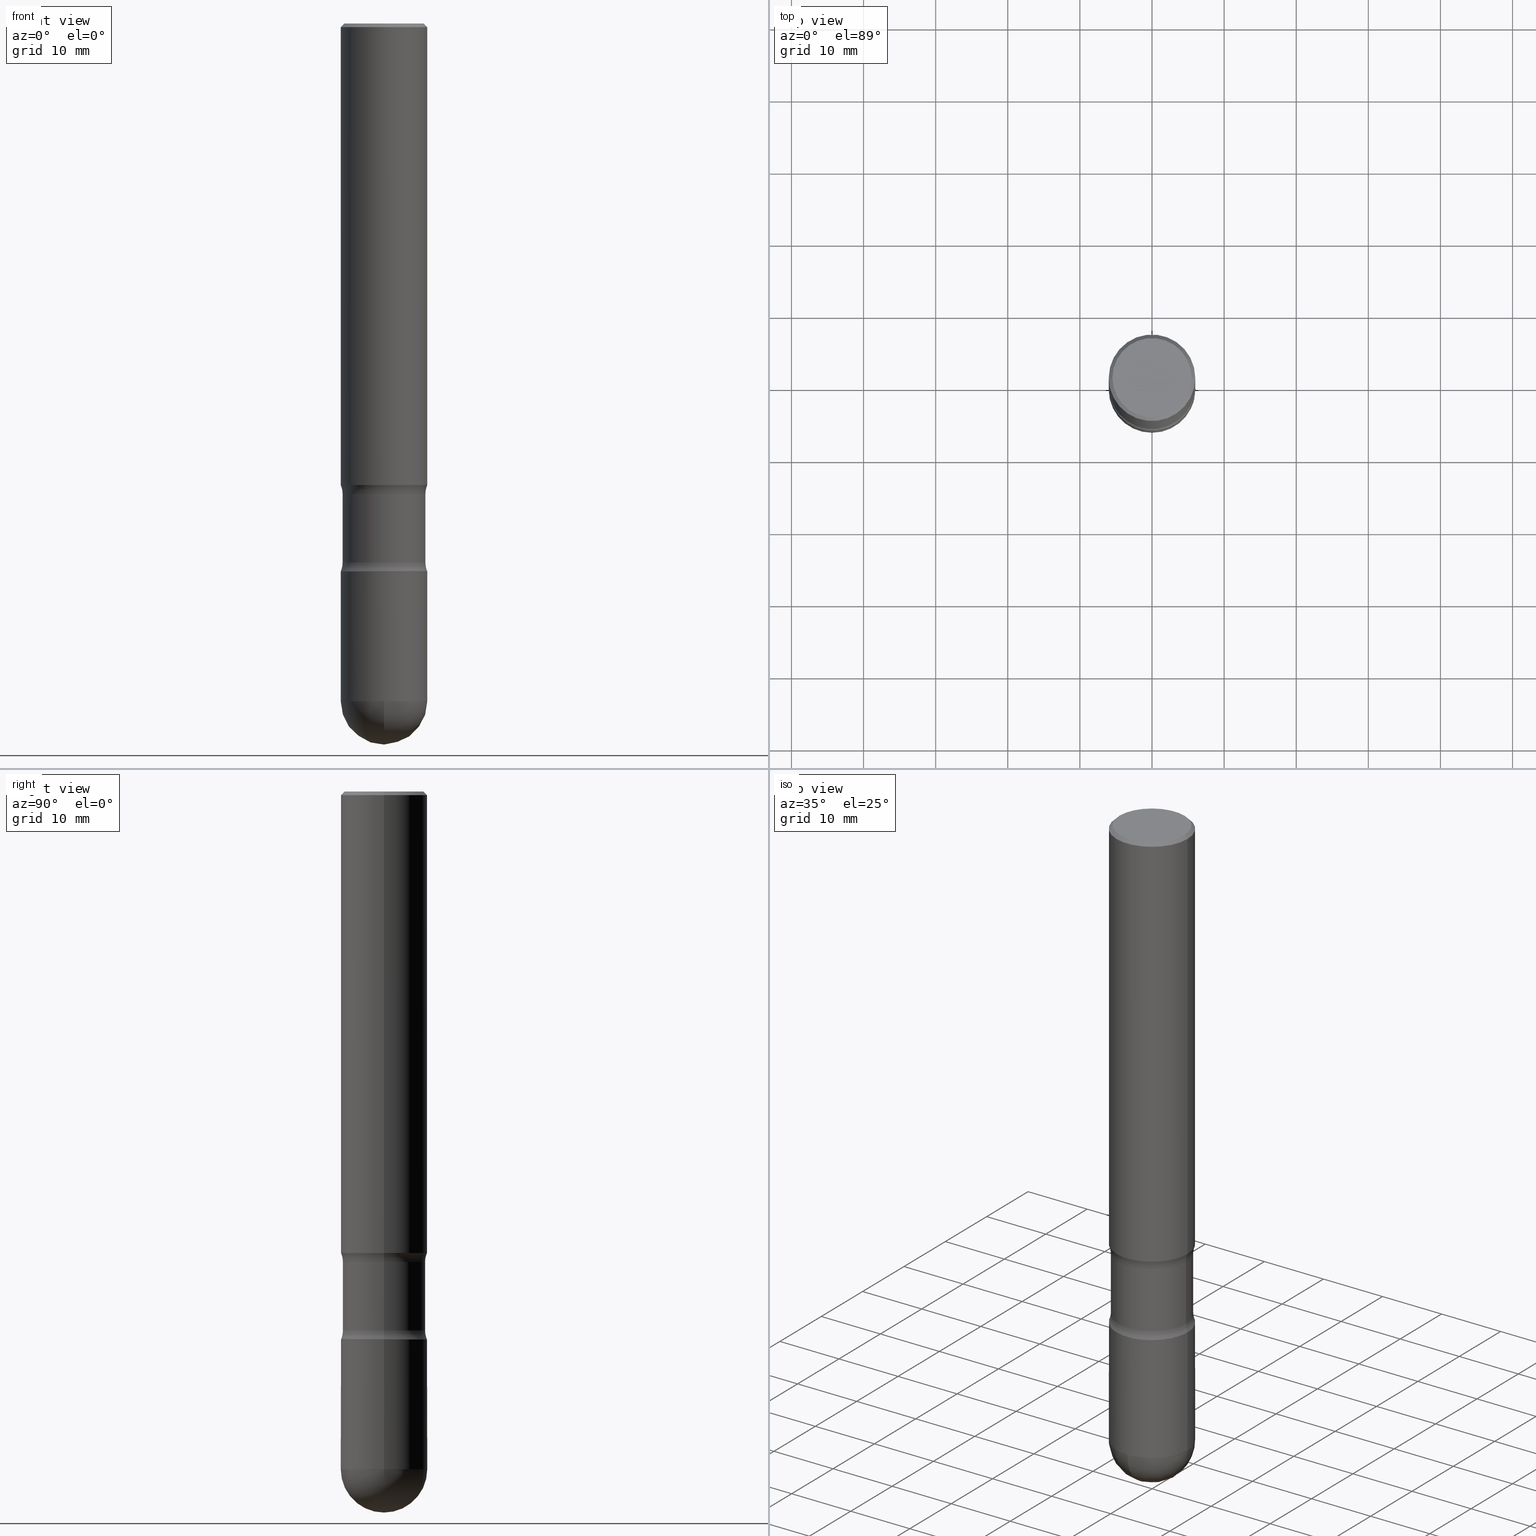
[diagram: canonical four-view strip — front | top / right | iso, engineering-drawing reading convention]
A machine part, canonical four-view strip (front | top / right | iso — engineering-drawing reading convention). The complete STEP part file that produces these views, byte-faithful:
ISO-10303-21;
HEADER;
FILE_DESCRIPTION (( 'STEP AP203' ),
    '1' );
FILE_NAME ('44935.STEP',
    '2024-02-29T19:26:20',
    ( '' ),
    ( '' ),
    'SwSTEP 2.0',
    'SolidWorks 2023',
    '' );
FILE_SCHEMA (( 'CONFIG_CONTROL_DESIGN' ));
ENDSEC;

DATA;
#1 = ORIENTED_EDGE ( 'NONE', *, *, #159, .T. ) ;
#2 = VERTEX_POINT ( 'NONE', #149 ) ;
#3 = DIRECTION ( 'NONE',  ( -1.000000000000000000, 6.982962677686266711E-15, 0.000000000000000000 ) ) ;
#4 = ORIENTED_EDGE ( 'NONE', *, *, #413, .F. ) ;
#5 = VECTOR ( 'NONE', #270, 39.37007874015748143 ) ;
#6 = DIRECTION ( 'NONE',  ( 2.445468806185136597E-29, -3.491481338843145583E-15, -1.000000000000000000 ) ) ;
#7 = CC_DESIGN_APPROVAL ( #213, ( #223 ) ) ;
#8 = CARTESIAN_POINT ( 'NONE',  ( 4.890937612370354609E-31, -6.982962677686407473E-17, -0.02000000000000033348 ) ) ;
#9 = ORIENTED_EDGE ( 'NONE', *, *, #503, .F. ) ;
#10 = EDGE_CURVE ( 'NONE', #262, #236, #176, .T. ) ;
#11 = ORIENTED_EDGE ( 'NONE', *, *, #33, .T. ) ;
#12 = DIRECTION ( 'NONE',  ( 2.445468806185136597E-29, -3.491481338843145583E-15, -1.000000000000000000 ) ) ;
#13 = VERTEX_POINT ( 'NONE', #278 ) ;
#14 = ORIENTED_EDGE ( 'NONE', *, *, #24, .T. ) ;
#15 = CARTESIAN_POINT ( 'NONE',  ( 0.000000000000000000, 0.000000000000000000, 0.000000000000000000 ) ) ;
#16 = COORDINATED_UNIVERSAL_TIME_OFFSET ( 5, 0, .BEHIND. ) ;
#17 = EDGE_LOOP ( 'NONE', ( #530, #527, #43, #444 ) ) ;
#18 = AXIS2_PLACEMENT_3D ( 'NONE', #548, #502, #206 ) ;
#19 = AXIS2_PLACEMENT_3D ( 'NONE', #108, #377, #248 ) ;
#20 = EDGE_CURVE ( 'NONE', #107, #197, #332, .T. ) ;
#21 = ORIENTED_EDGE ( 'NONE', *, *, #496, .F. ) ;
#22 = DIRECTION ( 'NONE',  ( 2.438088387897960049E-29, -3.491481338843145188E-15, -1.000000000000000000 ) ) ;
#23 = LINE ( 'NONE', #349, #66 ) ;
#24 = EDGE_CURVE ( 'NONE', #64, #13, #65, .T. ) ;
#25 = CARTESIAN_POINT ( 'NONE',  ( -0.2259999999999994513, -7.392012926791492320E-15, -2.569156647682591998 ) ) ;
#26 = COORDINATED_UNIVERSAL_TIME_OFFSET ( 5, 0, .BEHIND. ) ;
#27 = EDGE_LOOP ( 'NONE', ( #491, #493 ) ) ;
#28 = EDGE_CURVE ( 'NONE', #417, #359, #392, .T. ) ;
#29 = DIRECTION ( 'NONE',  ( -2.445468806185136597E-29, 3.491481338843145583E-15, 1.000000000000000000 ) ) ;
#30 = PLANE ( 'NONE',  #46 ) ;
#31 = DIRECTION ( 'NONE',  ( 6.860497997771531562E-15, 1.000000000000000000, -3.491481338843145583E-15 ) ) ;
#32 = CARTESIAN_POINT ( 'NONE',  ( 1.509716530915768548E-15, 0.2161999999999996980, -7.527240092128368218E-16 ) ) ;
#33 = EDGE_CURVE ( 'NONE', #453, #368, #186, .T. ) ;
#34 = CIRCLE ( 'NONE', #504, 0.2362000000000000210 ) ;
#35 = DIRECTION ( 'NONE',  ( -2.438088387897960049E-29, 3.491481338843145188E-15, 1.000000000000000000 ) ) ;
#36 = CIRCLE ( 'NONE', #73, 0.2361999999999997712 ) ;
#37 = CONICAL_SURFACE ( 'NONE', #289, 0.2356999999999994377, 0.7853981633973995402 ) ;
#38 =( NAMED_UNIT ( * ) PLANE_ANGLE_UNIT ( ) SI_UNIT ( $, .RADIAN. ) );
#39 = CARTESIAN_POINT ( 'NONE',  ( -0.2362000000000000210, -7.148109745013582758E-15, -2.519700000000001605 ) ) ;
#40 = EDGE_CURVE ( 'NONE', #440, #240, #371, .T. ) ;
#41 = DIRECTION ( 'NONE',  ( 1.000000000000000000, 0.000000000000000000, 0.000000000000000000 ) ) ;
#42 = PERSON ( 'UNSPECIFIED', 'UNSPECIFIED', 'UNSPECIFIED', ('UNSPECIFIED'), ('UNSPECIFIED'), ('UNSPECIFIED') ) ;
#43 = ORIENTED_EDGE ( 'NONE', *, *, #103, .F. ) ;
#44 = AXIS2_PLACEMENT_3D ( 'NONE', #15, #423, #68 ) ;
#45 = ADVANCED_FACE ( 'NONE', ( #380 ), #506, .T. ) ;
#46 = AXIS2_PLACEMENT_3D ( 'NONE', #220, #519, #454 ) ;
#47 = LOCAL_TIME ( 14, 26, 20.00000000000000000, #26 ) ;
#48 = CARTESIAN_POINT ( 'NONE',  ( 7.196142525820281571E-29, -1.027418435148706833E-14, -2.942643352317408478 ) ) ;
#49 = EDGE_LOOP ( 'NONE', ( #370, #244, #419, #14 ) ) ;
#50 = DIRECTION ( 'NONE',  ( -1.000000000000000000, 6.860497997771534718E-15, 0.000000000000000000 ) ) ;
#51 = ADVANCED_FACE ( 'NONE', ( #77 ), #347, .F. ) ;
#52 = ORIENTED_EDGE ( 'NONE', *, *, #472, .F. ) ;
#53 = ADVANCED_FACE ( 'NONE', ( #219 ), #354, .T. ) ;
#54 = DIRECTION ( 'NONE',  ( -2.445468806185136597E-29, 3.491481338843145583E-15, 1.000000000000000000 ) ) ;
#55 = DIRECTION ( 'NONE',  ( 1.000000000000000000, -6.982962677686264344E-15, 0.000000000000000000 ) ) ;
#56 = EDGE_LOOP ( 'NONE', ( #309, #228, #187, #302 ) ) ;
#57 = VECTOR ( 'NONE', #142, 39.37007874015748143 ) ;
#58 = APPROVAL_PERSON_ORGANIZATION ( #524, #118, #280 ) ;
#59 = CARTESIAN_POINT ( 'NONE',  ( 1.649375784469583694E-15, 0.2361999999999866706, -3.700800000000000978 ) ) ;
#60 = ORIENTED_EDGE ( 'NONE', *, *, #143, .F. ) ;
#61 = CARTESIAN_POINT ( 'NONE',  ( 0.2356999999999994377, -1.209274561708322459E-14, -2.992100000000000204 ) ) ;
#62 = ORIENTED_EDGE ( 'NONE', *, *, #103, .T. ) ;
#63 = EDGE_LOOP ( 'NONE', ( #1, #400 ) ) ;
#64 = VERTEX_POINT ( 'NONE', #393 ) ;
#65 = CIRCLE ( 'NONE', #18, 0.2259999999999994791 ) ;
#66 = VECTOR ( 'NONE', #295, 39.37007874015748143 ) ;
#67 = LOCAL_TIME ( 14, 26, 20.00000000000000000, #82 ) ;
#68 = DIRECTION ( 'NONE',  ( -1.000000000000000000, 6.982962677686266711E-15, -4.876176775795936353E-29 ) ) ;
#69 = PRODUCT ( '44935', '44935', '', ( #404 ) ) ;
#70 = CARTESIAN_POINT ( 'NONE',  ( 0.3509999999999877107, -1.137819728916630722E-14, -2.569156647682591998 ) ) ;
#71 = EDGE_CURVE ( 'NONE', #236, #107, #306, .T. ) ;
#72 = DIRECTION ( 'NONE',  ( -2.445468806185136597E-29, 3.491481338843145583E-15, 1.000000000000000000 ) ) ;
#73 = AXIS2_PLACEMENT_3D ( 'NONE', #8, #402, #439 ) ;
#74 = DIRECTION ( 'NONE',  ( -1.000000000000000000, 6.982962677686264344E-15, 0.000000000000000000 ) ) ;
#75 = AXIS2_PLACEMENT_3D ( 'NONE', #471, #420, #552 ) ;
#76 = CALENDAR_DATE ( 2024, 29, 2 ) ;
#77 = FACE_OUTER_BOUND ( 'NONE', #95, .T. ) ;
#78 = ADVANCED_FACE ( 'NONE', ( #391 ), #164, .T. ) ;
#79 = DIRECTION ( 'NONE',  ( -1.000000000000000000, 6.982962677686265922E-15, -4.883557194083112340E-29 ) ) ;
#80 = CLOSED_SHELL ( 'NONE', ( #138, #341, #461, #446, #394 ) ) ;
#81 = VECTOR ( 'NONE', #227, 39.37007874015748143 ) ;
#82 = COORDINATED_UNIVERSAL_TIME_OFFSET ( 5, 0, .BEHIND. ) ;
#83 = DIRECTION ( 'NONE',  ( 0.7071067811865426878, -7.319954787623238690E-15, -0.7071067811865523467 ) ) ;
#84 = CARTESIAN_POINT ( 'NONE',  ( 6.282792440110956015E-29, -8.970162491948585188E-15, -2.569156647682591998 ) ) ;
#85 = CARTESIAN_POINT ( 'NONE',  ( -0.2361999999999993827, 1.678301941865352253E-15, -1.161852468318205674E-29 ) ) ;
#86 = DIRECTION ( 'NONE',  ( 2.445468806185136597E-29, -3.491481338843145583E-15, -1.000000000000000000 ) ) ;
#87 = CC_DESIGN_PERSON_AND_ORGANIZATION_ASSIGNMENT ( #451, #526, ( #69 ) ) ;
#88 = EDGE_LOOP ( 'NONE', ( #538, #98 ) ) ;
#89 = FACE_OUTER_BOUND ( 'NONE', #458, .T. ) ;
#90 = ORIENTED_EDGE ( 'NONE', *, *, #33, .F. ) ;
#91 = CONICAL_SURFACE ( 'NONE', #264, 0.2361999999999997712, 0.7853981633974415066 ) ;
#92 = ORGANIZATION ( 'UNSPECIFIED', 'UNSPECIFIED', '' ) ;
#93 = ORIENTED_EDGE ( 'NONE', *, *, #272, .T. ) ;
#94 = DIRECTION ( 'NONE',  ( 6.860497997771531562E-15, 1.000000000000000000, -3.491481338843145583E-15 ) ) ;
#95 = EDGE_LOOP ( 'NONE', ( #90, #328, #494, #268 ) ) ;
#96 = CARTESIAN_POINT ( 'NONE',  ( 0.2361999999999994382, -1.209623709842206760E-14, -2.992100000000000204 ) ) ;
#97 = CC_DESIGN_DATE_AND_TIME_ASSIGNMENT ( #252, #381, ( #223 ) ) ;
#98 = ORIENTED_EDGE ( 'NONE', *, *, #437, .T. ) ;
#99 = DIRECTION ( 'NONE',  ( -1.000000000000000000, 6.982962677686266711E-15, -4.876176775795936353E-29 ) ) ;
#100 = ORIENTED_EDGE ( 'NONE', *, *, #553, .T. ) ;
#101 = EDGE_LOOP ( 'NONE', ( #137, #233, #369, #482 ) ) ;
#102 = ORIENTED_EDGE ( 'NONE', *, *, #553, .F. ) ;
#103 = EDGE_CURVE ( 'NONE', #222, #146, #34, .T. ) ;
#104 = AXIS2_PLACEMENT_3D ( 'NONE', #154, #247, #116 ) ;
#105 = ORIENTED_EDGE ( 'NONE', *, *, #40, .F. ) ;
#106 = CC_DESIGN_SECURITY_CLASSIFICATION ( #223, ( #356 ) ) ;
#107 = VERTEX_POINT ( 'NONE', #514 ) ;
#108 = CARTESIAN_POINT ( 'NONE',  ( 9.029991930179535488E-29, -1.295020029618657502E-14, -3.700800000000000090 ) ) ;
#109 = CARTESIAN_POINT ( 'NONE',  ( 7.317087214986547114E-29, -1.044686131395257581E-14, -2.992100000000000204 ) ) ;
#110 = DIRECTION ( 'NONE',  ( -2.445468806185136597E-29, 3.491481338843145583E-15, 1.000000000000000000 ) ) ;
#111 = DIRECTION ( 'NONE',  ( 2.445468806185136597E-29, -3.491481338843145583E-15, -1.000000000000000000 ) ) ;
#112 = DIRECTION ( 'NONE',  ( 2.445468806185136597E-29, -3.491481338843145583E-15, -1.000000000000000000 ) ) ;
#113 = AXIS2_PLACEMENT_3D ( 'NONE', #317, #185, #182 ) ;
#114 = APPROVAL_PERSON_ORGANIZATION ( #518, #256, #298 ) ;
#115 = DIRECTION ( 'NONE',  ( -2.445468806185136877E-29, 3.491481338843145188E-15, 1.000000000000000000 ) ) ;
#116 = DIRECTION ( 'NONE',  ( -1.000000000000000000, 6.982962677686268288E-15, 0.000000000000000000 ) ) ;
#117 = CYLINDRICAL_SURFACE ( 'NONE', #104, 0.2361999999999998823 ) ;
#118 = APPROVAL ( #465, 'UNSPECIFIED' ) ;
#119 = CARTESIAN_POINT ( 'NONE',  ( 0.2161999999999996980, -1.586759460484350410E-15, 1.082724460448618591E-29 ) ) ;
#120 = PERSON_AND_ORGANIZATION ( #42, #92 ) ;
#121 = ADVANCED_FACE ( 'NONE', ( #300 ), #407, .F. ) ;
#122 = DATE_AND_TIME ( #76, #47 ) ;
#123 = AXIS2_PLACEMENT_3D ( 'NONE', #551, #111, #283 ) ;
#124 = AXIS2_PLACEMENT_3D ( 'NONE', #541, #537, #55 ) ;
#125 = CARTESIAN_POINT ( 'NONE',  ( 9.050190957929953666E-29, -1.292127413879071357E-14, -3.700800000000000090 ) ) ;
#126 = DIRECTION ( 'NONE',  ( 2.445468806185136597E-29, -3.491481338843145583E-15, -1.000000000000000000 ) ) ;
#127 = CARTESIAN_POINT ( 'NONE',  ( 7.317087214986547114E-29, -1.044686131395257581E-14, -2.992100000000000204 ) ) ;
#128 = LOCAL_TIME ( 14, 26, 20.00000000000000000, #431 ) ;
#129 = EDGE_CURVE ( 'NONE', #195, #144, #505, .T. ) ;
#130 = EDGE_CURVE ( 'NONE', #2, #135, #36, .T. ) ;
#131 = DIRECTION ( 'NONE',  ( -1.000000000000000000, 6.982962677686266711E-15, -4.883557194083112901E-29 ) ) ;
#132 = ORIENTED_EDGE ( 'NONE', *, *, #10, .F. ) ;
#133 = MANIFOLD_SOLID_BREP ( 'Body-Move/Copy2[2]', #336 ) ;
#134 = CARTESIAN_POINT ( 'NONE',  ( -0.2361999999999992716, -1.000576578450629382E-14, -3.700800000000000090 ) ) ;
#135 = VERTEX_POINT ( 'NONE', #399 ) ;
#136 = CARTESIAN_POINT ( 'NONE',  ( 7.196142525820281571E-29, -1.027418435148706833E-14, -2.942643352317408478 ) ) ;
#137 = ORIENTED_EDGE ( 'NONE', *, *, #511, .F. ) ;
#138 = ADVANCED_FACE ( 'NONE', ( #89 ), #529, .T. ) ;
#139 = AXIS2_PLACEMENT_3D ( 'NONE', #334, #199, #501 ) ;
#140 = EDGE_CURVE ( 'NONE', #135, #2, #161, .T. ) ;
#141 = AXIS2_PLACEMENT_3D ( 'NONE', #331, #464, #294 ) ;
#142 = DIRECTION ( 'NONE',  ( 2.445468806185136877E-29, -3.491481338843145188E-15, -1.000000000000000000 ) ) ;
#143 = EDGE_CURVE ( 'NONE', #240, #64, #550, .T. ) ;
#144 = VERTEX_POINT ( 'NONE', #134 ) ;
#145 = DIRECTION ( 'NONE',  ( 1.000000000000000000, -6.982962677686266711E-15, 0.000000000000000000 ) ) ;
#146 = VERTEX_POINT ( 'NONE', #360 ) ;
#147 = ORIENTED_EDGE ( 'NONE', *, *, #151, .T. ) ;
#148 = CARTESIAN_POINT ( 'NONE',  ( 0.2360498943860057097, -1.206505949204264227E-14, -2.991750105613993682 ) ) ;
#149 = CARTESIAN_POINT ( 'NONE',  ( -0.2361999999999997712, 1.579546157692630466E-15, -0.02000000000000033348 ) ) ;
#150 = AXIS2_PLACEMENT_3D ( 'NONE', #136, #305, #484 ) ;
#151 = EDGE_CURVE ( 'NONE', #368, #222, #259, .T. ) ;
#152 = ADVANCED_FACE ( 'NONE', ( #363 ), #497, .F. ) ;
#153 = APPROVAL_STATUS ( 'not_yet_approved' ) ;
#154 = CARTESIAN_POINT ( 'NONE',  ( 7.317087214986547114E-29, -1.044686131395257581E-14, -2.992100000000000204 ) ) ;
#155 = CARTESIAN_POINT ( 'NONE',  ( 7.317087214986547114E-29, -1.044686131395257581E-14, -2.992100000000000204 ) ) ;
#156 = CARTESIAN_POINT ( 'NONE',  ( 9.029991930179535488E-29, -1.295020029618657502E-14, -3.700800000000000090 ) ) ;
#157 = CARTESIAN_POINT ( 'NONE',  ( 6.161847750944692713E-29, -8.797485529483079283E-15, -2.519700000000001605 ) ) ;
#158 = DATE_TIME_ROLE ( 'creation_date' ) ;
#159 = EDGE_CURVE ( 'NONE', #409, #486, #201, .T. ) ;
#160 = AXIS2_PLACEMENT_3D ( 'NONE', #84, #86, #131 ) ;
#161 = CIRCLE ( 'NONE', #337, 0.2361999999999997712 ) ;
#162 =( GEOMETRIC_REPRESENTATION_CONTEXT ( 3 ) GLOBAL_UNCERTAINTY_ASSIGNED_CONTEXT ( ( #424 ) ) GLOBAL_UNIT_ASSIGNED_CONTEXT ( ( #282, #38, #468 ) ) REPRESENTATION_CONTEXT ( 'NONE', 'WORKASPACE' ) );
#163 = PERSON_AND_ORGANIZATION ( #42, #92 ) ;
#164 = CYLINDRICAL_SURFACE ( 'NONE', #432, 0.2259999999999994513 ) ;
#165 = EDGE_CURVE ( 'NONE', #359, #417, #455, .T. ) ;
#166 = CARTESIAN_POINT ( 'NONE',  ( 4.890937612370354609E-31, -6.982962677686407473E-17, -0.02000000000000033348 ) ) ;
#167 = DIRECTION ( 'NONE',  ( 2.445468806185136597E-29, -3.491481338843145583E-15, -1.000000000000000000 ) ) ;
#168 = SPHERICAL_SURFACE ( 'NONE', #355, 0.2361999999999999655 ) ;
#169 = AXIS2_PLACEMENT_3D ( 'NONE', #387, #436, #561 ) ;
#170 = ADVANCED_FACE ( 'NONE', ( #452 ), #177, .T. ) ;
#171 = DATE_AND_TIME ( #258, #67 ) ;
#172 = CIRCLE ( 'NONE', #308, 0.2259999999999994513 ) ;
#173 = CARTESIAN_POINT ( 'NONE',  ( 9.050190957929953666E-29, -1.292127413879071357E-14, -3.700800000000000090 ) ) ;
#174 = CARTESIAN_POINT ( 'NONE',  ( 9.050190957929953666E-29, -1.292127413879071357E-14, -3.700800000000000090 ) ) ;
#175 = PRODUCT_DEFINITION ( 'UNKNOWN', '', #356, #243 ) ;
#176 = CIRCLE ( 'NONE', #495, 0.2361999999999999655 ) ;
#177 = CYLINDRICAL_SURFACE ( 'NONE', #515, 0.2361999999999998823 ) ;
#178 = CIRCLE ( 'NONE', #543, 0.1249999999999882871 ) ;
#179 = FACE_OUTER_BOUND ( 'NONE', #492, .T. ) ;
#180 = CONICAL_SURFACE ( 'NONE', #477, 0.2356999999999994377, 0.7853981633973995402 ) ;
#181 = ORIENTED_EDGE ( 'NONE', *, *, #413, .T. ) ;
#182 = DIRECTION ( 'NONE',  ( 1.000000000000000000, -6.982962677686265922E-15, 4.876176775795935793E-29 ) ) ;
#183 = EDGE_LOOP ( 'NONE', ( #277, #100, #412, #324 ) ) ;
#184 = CARTESIAN_POINT ( 'NONE',  ( 0.3510000000000005893, -1.268221914870488028E-14, -2.942643352317408478 ) ) ;
#185 = DIRECTION ( 'NONE',  ( -2.445468806185136597E-29, 3.491481338843145583E-15, 1.000000000000000000 ) ) ;
#186 = CIRCLE ( 'NONE', #139, 0.2259999999999994513 ) ;
#187 = ORIENTED_EDGE ( 'NONE', *, *, #395, .T. ) ;
#188 = CIRCLE ( 'NONE', #141, 0.2361999999999999655 ) ;
#189 = ORIENTED_EDGE ( 'NONE', *, *, #449, .F. ) ;
#190 =( LENGTH_UNIT ( ) NAMED_UNIT ( * ) SI_UNIT ( $, .METRE. ) );
#191 = CARTESIAN_POINT ( 'NONE',  ( -0.3510000000000005893, -7.823164451619184229E-15, -2.942643352317408478 ) ) ;
#192 = EDGE_LOOP ( 'NONE', ( #428, #544, #226, #540 ) ) ;
#193 = ORIENTED_EDGE ( 'NONE', *, *, #129, .T. ) ;
#194 = DIRECTION ( 'NONE',  ( -1.000000000000000000, 6.982962677686268288E-15, 0.000000000000000000 ) ) ;
#195 = VERTEX_POINT ( 'NONE', #59 ) ;
#196 = EDGE_CURVE ( 'NONE', #409, #440, #303, .T. ) ;
#197 = VERTEX_POINT ( 'NONE', #96 ) ;
#198 = DIRECTION ( 'NONE',  ( -0.7071067811865130448, 7.493145998870229520E-15, 0.7071067811865819897 ) ) ;
#199 = DIRECTION ( 'NONE',  ( 2.445468806185136597E-29, -3.491481338843145583E-15, -1.000000000000000000 ) ) ;
#200 = FACE_OUTER_BOUND ( 'NONE', #447, .T. ) ;
#201 = CIRCLE ( 'NONE', #558, 0.2356999999999994377 ) ;
#202 = AXIS2_PLACEMENT_3D ( 'NONE', #312, #6, #3 ) ;
#203 = CALENDAR_DATE ( 2024, 29, 2 ) ;
#204 = APPLICATION_CONTEXT ( 'configuration controlled 3d designs of mechanical parts and assemblies' ) ;
#205 = EDGE_CURVE ( 'NONE', #2, #222, #448, .T. ) ;
#206 = DIRECTION ( 'NONE',  ( -1.000000000000000000, 6.982962677686267499E-15, 0.000000000000000000 ) ) ;
#207 = LENGTH_MEASURE_WITH_UNIT ( LENGTH_MEASURE( 0.02539999999999999897 ), #190 );
#208 = DIRECTION ( 'NONE',  ( -1.000000000000000000, 6.982962677686265922E-15, -4.876176775795935793E-29 ) ) ;
#209 = AXIS2_PLACEMENT_3D ( 'NONE', #267, #489, #99 ) ;
#210 = DIRECTION ( 'NONE',  ( 2.445468806185136597E-29, -3.491481338843145583E-15, -1.000000000000000000 ) ) ;
#211 = ORIENTED_EDGE ( 'NONE', *, *, #271, .F. ) ;
#212 = FACE_OUTER_BOUND ( 'NONE', #88, .T. ) ;
#213 = APPROVAL ( #547, 'UNSPECIFIED' ) ;
#214 = LINE ( 'NONE', #352, #322 ) ;
#215 = DIRECTION ( 'NONE',  ( 2.445468806185136597E-29, -3.491481338843145583E-15, -1.000000000000000000 ) ) ;
#216 = AXIS2_PLACEMENT_3D ( 'NONE', #307, #357, #443 ) ;
#217 = DIRECTION ( 'NONE',  ( 1.000000000000000000, -6.982962677686265922E-15, 4.876176775795935793E-29 ) ) ;
#218 = VECTOR ( 'NONE', #488, 39.37007874015748143 ) ;
#219 = FACE_OUTER_BOUND ( 'NONE', #27, .T. ) ;
#220 = CARTESIAN_POINT ( 'NONE',  ( 7.317087214986547114E-29, -1.044686131395257581E-14, -2.992100000000000204 ) ) ;
#221 = AXIS2_PLACEMENT_3D ( 'NONE', #109, #323, #279 ) ;
#222 = VERTEX_POINT ( 'NONE', #39 ) ;
#223 = SECURITY_CLASSIFICATION ( '', '', #512 ) ;
#224 = ADVANCED_BREP_SHAPE_REPRESENTATION ( '44935', ( #325, #133, #398 ), #162 ) ;
#225 = DIRECTION ( 'NONE',  ( -1.000000000000000000, 6.982962677686266711E-15, 0.000000000000000000 ) ) ;
#226 = ORIENTED_EDGE ( 'NONE', *, *, #130, .F. ) ;
#227 = DIRECTION ( 'NONE',  ( 0.7071067811865130448, -2.468850131081895762E-15, 0.7071067811865819897 ) ) ;
#228 = ORIENTED_EDGE ( 'NONE', *, *, #511, .T. ) ;
#229 = LINE ( 'NONE', #534, #57 ) ;
#230 = EDGE_LOOP ( 'NONE', ( #406, #462, #147, #62 ) ) ;
#231 = ORIENTED_EDGE ( 'NONE', *, *, #129, .F. ) ;
#232 = CARTESIAN_POINT ( 'NONE',  ( -0.2360498943860057097, -8.797312061664006417E-15, -2.991750105613993682 ) ) ;
#233 = ORIENTED_EDGE ( 'NONE', *, *, #159, .F. ) ;
#234 = CIRCLE ( 'NONE', #533, 0.1250000000000010547 ) ;
#235 = CC_DESIGN_APPROVAL ( #256, ( #175 ) ) ;
#236 = VERTEX_POINT ( 'NONE', #563 ) ;
#237 = CARTESIAN_POINT ( 'NONE',  ( 0.2259999999999994513, -1.199733386144893843E-14, -2.992100000000000204 ) ) ;
#238 = ORIENTED_EDGE ( 'NONE', *, *, #271, .T. ) ;
#239 = ADVANCED_FACE ( 'NONE', ( #179 ), #284, .F. ) ;
#240 = VERTEX_POINT ( 'NONE', #232 ) ;
#241 = DATE_AND_TIME ( #460, #299 ) ;
#242 = DIRECTION ( 'NONE',  ( -1.000000000000000000, 7.105427357601001070E-15, -4.926315508542082329E-29 ) ) ;
#243 = DESIGN_CONTEXT ( 'detailed design', #204, 'design' ) ;
#244 = ORIENTED_EDGE ( 'NONE', *, *, #395, .F. ) ;
#245 = EDGE_CURVE ( 'NONE', #144, #266, #401, .T. ) ;
#246 = AXIS2_PLACEMENT_3D ( 'NONE', #191, #367, #263 ) ;
#247 = DIRECTION ( 'NONE',  ( 2.445468806185136597E-29, -3.491481338843145583E-15, -1.000000000000000000 ) ) ;
#248 = DIRECTION ( 'NONE',  ( 6.982962677686265922E-15, 1.000000000000000000, -4.626330217890370125E-15 ) ) ;
#249 = CYLINDRICAL_SURFACE ( 'NONE', #221, 0.2259999999999994513 ) ;
#250 = DIMENSIONAL_EXPONENTS ( 1.000000000000000000, 0.000000000000000000, 0.000000000000000000, 0.000000000000000000, 0.000000000000000000, 0.000000000000000000, 0.000000000000000000 ) ;
#251 = FACE_OUTER_BOUND ( 'NONE', #510, .T. ) ;
#252 = DATE_AND_TIME ( #422, #128 ) ;
#253 = AXIS2_PLACEMENT_3D ( 'NONE', #173, #54, #481 ) ;
#254 = DIRECTION ( 'NONE',  ( 1.000000000000000000, -6.982962677686264344E-15, 0.000000000000000000 ) ) ;
#255 = PERSON_AND_ORGANIZATION_ROLE ( 'classification_officer' ) ;
#256 = APPROVAL ( #153, 'UNSPECIFIED' ) ;
#257 = APPROVAL_DATE_TIME ( #509, #213 ) ;
#258 = CALENDAR_DATE ( 2024, 29, 2 ) ;
#259 = CIRCLE ( 'NONE', #216, 0.1249999999999882871 ) ;
#260 = DIRECTION ( 'NONE',  ( -2.445468806185136877E-29, 3.491481338843145188E-15, 1.000000000000000000 ) ) ;
#261 = PERSON_AND_ORGANIZATION ( #42, #92 ) ;
#262 = VERTEX_POINT ( 'NONE', #528 ) ;
#263 = DIRECTION ( 'NONE',  ( 1.000000000000000000, -6.982962677686265922E-15, 0.000000000000000000 ) ) ;
#264 = AXIS2_PLACEMENT_3D ( 'NONE', #166, #126, #508 ) ;
#265 = ORIENTED_EDGE ( 'NONE', *, *, #245, .T. ) ;
#266 = VERTEX_POINT ( 'NONE', #565 ) ;
#267 = CARTESIAN_POINT ( 'NONE',  ( 0.000000000000000000, 0.000000000000000000, 0.000000000000000000 ) ) ;
#268 = ORIENTED_EDGE ( 'NONE', *, *, #151, .F. ) ;
#269 = DIRECTION ( 'NONE',  ( 1.000000000000000000, -6.982962677686266711E-15, 0.000000000000000000 ) ) ;
#270 = DIRECTION ( 'NONE',  ( 2.445468806185136877E-29, -3.491481338843145188E-15, -1.000000000000000000 ) ) ;
#271 = EDGE_CURVE ( 'NONE', #13, #64, #466, .T. ) ;
#272 = EDGE_CURVE ( 'NONE', #440, #13, #234, .T. ) ;
#273 = DIRECTION ( 'NONE',  ( 2.445468806185136597E-29, -3.491481338843145583E-15, -1.000000000000000000 ) ) ;
#274 = CARTESIAN_POINT ( 'NONE',  ( -0.2356999999999994377, -8.772112085766024257E-15, -2.992100000000000204 ) ) ;
#275 = EDGE_LOOP ( 'NONE', ( #403, #319, #321, #340, #487 ) ) ;
#276 = VECTOR ( 'NONE', #83, 39.37007874015748143 ) ;
#277 = ORIENTED_EDGE ( 'NONE', *, *, #333, .T. ) ;
#278 = CARTESIAN_POINT ( 'NONE',  ( 0.2259999999999994791, -1.117264596921418701E-14, -2.942643352317408478 ) ) ;
#279 = DIRECTION ( 'NONE',  ( -1.000000000000000000, 6.982962677686264344E-15, 0.000000000000000000 ) ) ;
#280 = APPROVAL_ROLE ( '' ) ;
#281 = FACE_OUTER_BOUND ( 'NONE', #192, .T. ) ;
#282 =( CONVERSION_BASED_UNIT ( 'INCH', #207 ) LENGTH_UNIT ( ) NAMED_UNIT ( #250 ) );
#283 = DIRECTION ( 'NONE',  ( -1.000000000000000000, 6.982962677686268288E-15, 0.000000000000000000 ) ) ;
#284 = TOROIDAL_SURFACE ( 'NONE', #476, 0.3510000000000005893, 0.1250000000000010825 ) ;
#285 = LINE ( 'NONE', #421, #276 ) ;
#286 = SHAPE_DEFINITION_REPRESENTATION ( #549, #224 ) ;
#287 = CARTESIAN_POINT ( 'NONE',  ( 1.645884303130722346E-15, 0.2356999999999890016, -2.992100000000001092 ) ) ;
#288 = EDGE_CURVE ( 'NONE', #135, #146, #229, .T. ) ;
#289 = AXIS2_PLACEMENT_3D ( 'NONE', #351, #490, #269 ) ;
#290 = CARTESIAN_POINT ( 'NONE',  ( 6.282792440110956015E-29, -8.970162491948585188E-15, -2.569156647682591998 ) ) ;
#291 = CONICAL_SURFACE ( 'NONE', #202, 0.2361999999999997712, 0.7853981633974415066 ) ;
#292 = CARTESIAN_POINT ( 'NONE',  ( 6.161847750944692713E-29, -8.797485529483079283E-15, -2.519700000000001605 ) ) ;
#293 = CARTESIAN_POINT ( 'NONE',  ( 7.196142525820281571E-29, -1.027418435148706833E-14, -2.942643352317408478 ) ) ;
#294 = DIRECTION ( 'NONE',  ( 6.982962677686265922E-15, 1.000000000000000000, 0.000000000000000000 ) ) ;
#295 = DIRECTION ( 'NONE',  ( -0.7071067811865426878, 2.468850131082206573E-15, -0.7071067811865523467 ) ) ;
#296 = EDGE_CURVE ( 'NONE', #453, #146, #178, .T. ) ;
#297 = DIRECTION ( 'NONE',  ( 6.982962677686265922E-15, 1.000000000000000000, -4.626330217890370125E-15 ) ) ;
#298 = APPROVAL_ROLE ( '' ) ;
#299 = LOCAL_TIME ( 14, 26, 20.00000000000000000, #16 ) ;
#300 = FACE_OUTER_BOUND ( 'NONE', #230, .T. ) ;
#301 = CC_DESIGN_PERSON_AND_ORGANIZATION_ASSIGNMENT ( #545, #255, ( #223 ) ) ;
#302 = ORIENTED_EDGE ( 'NONE', *, *, #196, .F. ) ;
#303 = LINE ( 'NONE', #61, #81 ) ;
#304 = ORIENTED_EDGE ( 'NONE', *, *, #71, .F. ) ;
#305 = DIRECTION ( 'NONE',  ( 2.445468806185136597E-29, -3.491481338843145583E-15, -1.000000000000000000 ) ) ;
#306 = CIRCLE ( 'NONE', #531, 0.2361999999999992716 ) ;
#307 = CARTESIAN_POINT ( 'NONE',  ( -0.3509999999999877107, -6.519142592080791022E-15, -2.569156647682591998 ) ) ;
#308 = AXIS2_PLACEMENT_3D ( 'NONE', #290, #554, #389 ) ;
#309 = ORIENTED_EDGE ( 'NONE', *, *, #358, .F. ) ;
#310 = AXIS2_PLACEMENT_3D ( 'NONE', #174, #29, #345 ) ;
#311 = EDGE_LOOP ( 'NONE', ( #4, #361, #9, #231 ) ) ;
#312 = CARTESIAN_POINT ( 'NONE',  ( 4.890937612370354609E-31, -6.982962677686407473E-17, -0.02000000000000033348 ) ) ;
#313 = DIRECTION ( 'NONE',  ( -1.000000000000000000, 6.982962677686266711E-15, 0.000000000000000000 ) ) ;
#314 = ORIENTED_EDGE ( 'NONE', *, *, #140, .F. ) ;
#315 = CARTESIAN_POINT ( 'NONE',  ( -0.2361999999999998823, -8.797485529483079283E-15, -2.992100000000000204 ) ) ;
#316 = EDGE_LOOP ( 'NONE', ( #102, #11, #411, #211 ) ) ;
#317 = CARTESIAN_POINT ( 'NONE',  ( 0.000000000000000000, 0.000000000000000000, 0.000000000000000000 ) ) ;
#318 = CYLINDRICAL_SURFACE ( 'NONE', #442, 0.2361999999999993827 ) ;
#319 = ORIENTED_EDGE ( 'NONE', *, *, #503, .T. ) ;
#320 = VECTOR ( 'NONE', #115, 39.37007874015748143 ) ;
#321 = ORIENTED_EDGE ( 'NONE', *, *, #71, .T. ) ;
#322 = VECTOR ( 'NONE', #390, 39.37007874015748143 ) ;
#323 = DIRECTION ( 'NONE',  ( 2.445468806185136597E-29, -3.491481338843145583E-15, -1.000000000000000000 ) ) ;
#324 = ORIENTED_EDGE ( 'NONE', *, *, #339, .F. ) ;
#325 = MANIFOLD_SOLID_BREP ( 'Body-Move/Copy2[1]', #80 ) ;
#326 = FACE_OUTER_BOUND ( 'NONE', #56, .T. ) ;
#327 = CARTESIAN_POINT ( 'NONE',  ( 0.000000000000000000, 0.000000000000000000, 0.000000000000000000 ) ) ;
#328 = ORIENTED_EDGE ( 'NONE', *, *, #296, .T. ) ;
#329 = FACE_OUTER_BOUND ( 'NONE', #459, .T. ) ;
#330 = DIRECTION ( 'NONE',  ( -1.000000000000000000, 6.982962677686268288E-15, 0.000000000000000000 ) ) ;
#331 = CARTESIAN_POINT ( 'NONE',  ( 9.029991930179535488E-29, -1.295020029618657502E-14, -3.700800000000000090 ) ) ;
#332 = LINE ( 'NONE', #414, #320 ) ;
#333 = EDGE_CURVE ( 'NONE', #368, #453, #172, .T. ) ;
#334 = CARTESIAN_POINT ( 'NONE',  ( 6.282792440110956015E-29, -8.970162491948585188E-15, -2.569156647682591998 ) ) ;
#335 = DIRECTION ( 'NONE',  ( 2.445468806185136597E-29, -3.491481338843145583E-15, -1.000000000000000000 ) ) ;
#336 = CLOSED_SHELL ( 'NONE', ( #525, #239, #405, #51, #170, #539, #346, #478, #121, #78, #152, #429, #45, #53 ) ) ;
#337 = AXIS2_PLACEMENT_3D ( 'NONE', #566, #445, #313 ) ;
#338 = APPROVAL_ROLE ( '' ) ;
#339 = EDGE_CURVE ( 'NONE', #368, #64, #214, .T. ) ;
#340 = ORIENTED_EDGE ( 'NONE', *, *, #20, .T. ) ;
#341 = ADVANCED_FACE ( 'NONE', ( #426 ), #168, .T. ) ;
#342 = CARTESIAN_POINT ( 'NONE',  ( -0.2356999999999994377, -8.770258186335069950E-15, -2.992100000000000204 ) ) ;
#343 = DIRECTION ( 'NONE',  ( -1.000000000000000000, 6.982962677686266711E-15, 0.000000000000000000 ) ) ;
#344 = DIRECTION ( 'NONE',  ( -1.000000000000000000, 6.982962677686268288E-15, 0.000000000000000000 ) ) ;
#345 = DIRECTION ( 'NONE',  ( 1.000000000000000000, -6.982962677686269866E-15, 0.000000000000000000 ) ) ;
#346 = ADVANCED_FACE ( 'NONE', ( #251 ), #91, .T. ) ;
#347 = TOROIDAL_SURFACE ( 'NONE', #169, 0.3509999999999877107, 0.1249999999999882871 ) ;
#348 = CIRCLE ( 'NONE', #418, 0.2362000000000000210 ) ;
#349 = CARTESIAN_POINT ( 'NONE',  ( -0.2361999999999997712, 1.579546157692630466E-15, -0.02000000000000033348 ) ) ;
#350 = CC_DESIGN_PERSON_AND_ORGANIZATION_ASSIGNMENT ( #555, #427, ( #356 ) ) ;
#351 = CARTESIAN_POINT ( 'NONE',  ( 7.317087214986547114E-29, -1.044686131395257581E-14, -2.992100000000000204 ) ) ;
#352 = CARTESIAN_POINT ( 'NONE',  ( -0.2259999999999994513, -8.868711748795482939E-15, -2.992100000000000204 ) ) ;
#353 = DIRECTION ( 'NONE',  ( 2.445468806185136597E-29, -3.491481338843145583E-15, -1.000000000000000000 ) ) ;
#354 = PLANE ( 'NONE',  #557 ) ;
#355 = AXIS2_PLACEMENT_3D ( 'NONE', #475, #79, #297 ) ;
#356 = PRODUCT_DEFINITION_FORMATION_WITH_SPECIFIED_SOURCE ( 'ANY', '', #69, .NOT_KNOWN. ) ;
#357 = DIRECTION ( 'NONE',  ( -6.982962677686266711E-15, -1.000000000000000000, 3.491481338843145583E-15 ) ) ;
#358 = EDGE_CURVE ( 'NONE', #486, #409, #469, .T. ) ;
#359 = VERTEX_POINT ( 'NONE', #119 ) ;
#360 = CARTESIAN_POINT ( 'NONE',  ( 0.2362000000000000766, -6.054107205203603214E-15, -2.519700000000001605 ) ) ;
#361 = ORIENTED_EDGE ( 'NONE', *, *, #10, .T. ) ;
#362 = CIRCLE ( 'NONE', #433, 0.2361999999999994382 ) ;
#363 = FACE_OUTER_BOUND ( 'NONE', #49, .T. ) ;
#364 = CIRCLE ( 'NONE', #124, 0.2361999999999994382 ) ;
#365 = ORIENTED_EDGE ( 'NONE', *, *, #165, .T. ) ;
#366 = LINE ( 'NONE', #237, #218 ) ;
#367 = DIRECTION ( 'NONE',  ( -6.982962677686266711E-15, -1.000000000000000000, 3.491481338843145583E-15 ) ) ;
#368 = VERTEX_POINT ( 'NONE', #25 ) ;
#369 = ORIENTED_EDGE ( 'NONE', *, *, #196, .T. ) ;
#370 = ORIENTED_EDGE ( 'NONE', *, *, #272, .F. ) ;
#371 = CIRCLE ( 'NONE', #123, 0.2360498943860057097 ) ;
#372 = AXIS2_PLACEMENT_3D ( 'NONE', #378, #112, #330 ) ;
#373 = SPHERICAL_SURFACE ( 'NONE', #19, 0.2361999999999999655 ) ;
#374 = APPROVAL_PERSON_ORGANIZATION ( #120, #213, #338 ) ;
#375 = PRODUCT_RELATED_PRODUCT_CATEGORY ( 'detail', '', ( #69 ) ) ;
#376 = APPROVAL_DATE_TIME ( #122, #118 ) ;
#377 = DIRECTION ( 'NONE',  ( -1.000000000000000000, 6.982962677686265922E-15, -4.883557194083112340E-29 ) ) ;
#378 = CARTESIAN_POINT ( 'NONE',  ( 7.316231559180109880E-29, -1.044563966423326894E-14, -2.991750105613993682 ) ) ;
#379 = PERSON_AND_ORGANIZATION_ROLE ( 'design_supplier' ) ;
#380 = FACE_OUTER_BOUND ( 'NONE', #63, .T. ) ;
#381 = DATE_TIME_ROLE ( 'classification_date' ) ;
#382 = EDGE_CURVE ( 'NONE', #197, #266, #362, .T. ) ;
#383 = CIRCLE ( 'NONE', #372, 0.2360498943860057097 ) ;
#384 = CC_DESIGN_APPROVAL ( #118, ( #356 ) ) ;
#385 = CARTESIAN_POINT ( 'NONE',  ( 7.317087214986547114E-29, -1.044686131395257581E-14, -2.992100000000000204 ) ) ;
#386 = COORDINATED_UNIVERSAL_TIME_OFFSET ( 5, 0, .BEHIND. ) ;
#387 = CARTESIAN_POINT ( 'NONE',  ( 6.282792440110956015E-29, -8.970162491948585188E-15, -2.569156647682591998 ) ) ;
#388 = DIRECTION ( 'NONE',  ( -2.445468806185136597E-29, 3.491481338843145583E-15, 1.000000000000000000 ) ) ;
#389 = DIRECTION ( 'NONE',  ( -1.000000000000000000, 6.982962677686268288E-15, 0.000000000000000000 ) ) ;
#390 = DIRECTION ( 'NONE',  ( 2.445468806185136877E-29, -3.491481338843145188E-15, -1.000000000000000000 ) ) ;
#391 = FACE_OUTER_BOUND ( 'NONE', #316, .T. ) ;
#392 = CIRCLE ( 'NONE', #44, 0.2161999999999996980 ) ;
#393 = CARTESIAN_POINT ( 'NONE',  ( -0.2259999999999994791, -8.696034786329975456E-15, -2.942643352317408478 ) ) ;
#394 = ADVANCED_FACE ( 'NONE', ( #212 ), #30, .F. ) ;
#395 = EDGE_CURVE ( 'NONE', #240, #440, #383, .T. ) ;
#397 = AXIS2_PLACEMENT_3D ( 'NONE', #48, #273, #485 ) ;
#396 = APPLICATION_CONTEXT ( 'configuration controlled 3d designs of mechanical parts and assemblies' ) ;
#398 = AXIS2_PLACEMENT_3D ( 'NONE', #327, #463, #41 ) ;
#399 = CARTESIAN_POINT ( 'NONE',  ( 0.2361999999999997712, -1.690279253850498179E-15, -0.02000000000000033348 ) ) ;
#400 = ORIENTED_EDGE ( 'NONE', *, *, #358, .T. ) ;
#401 = LINE ( 'NONE', #85, #564 ) ;
#402 = DIRECTION ( 'NONE',  ( 2.445468806185136597E-29, -3.491481338843145583E-15, -1.000000000000000000 ) ) ;
#403 = ORIENTED_EDGE ( 'NONE', *, *, #245, .F. ) ;
#404 = MECHANICAL_CONTEXT ( 'NONE', #396, 'mechanical' ) ;
#405 = ADVANCED_FACE ( 'NONE', ( #467 ), #249, .T. ) ;
#406 = ORIENTED_EDGE ( 'NONE', *, *, #296, .F. ) ;
#407 = TOROIDAL_SURFACE ( 'NONE', #160, 0.3509999999999877107, 0.1249999999999882871 ) ;
#408 = FACE_OUTER_BOUND ( 'NONE', #275, .T. ) ;
#409 = VERTEX_POINT ( 'NONE', #425 ) ;
#410 = ORIENTED_EDGE ( 'NONE', *, *, #496, .T. ) ;
#411 = ORIENTED_EDGE ( 'NONE', *, *, #339, .T. ) ;
#412 = ORIENTED_EDGE ( 'NONE', *, *, #24, .F. ) ;
#413 = EDGE_CURVE ( 'NONE', #262, #195, #188, .T. ) ;
#414 = CARTESIAN_POINT ( 'NONE',  ( 0.2361999999999993827, -1.649375784469491792E-15, 1.151752954442997005E-29 ) ) ;
#415 = CARTESIAN_POINT ( 'NONE',  ( 0.2259999999999994513, -1.046928509800083188E-14, -2.569156647682591998 ) ) ;
#416 = CC_DESIGN_PERSON_AND_ORGANIZATION_ASSIGNMENT ( #163, #379, ( #356 ) ) ;
#417 = VERTEX_POINT ( 'NONE', #474 ) ;
#418 = AXIS2_PLACEMENT_3D ( 'NONE', #157, #335, #507 ) ;
#419 = ORIENTED_EDGE ( 'NONE', *, *, #143, .T. ) ;
#420 = DIRECTION ( 'NONE',  ( -2.445468806185136597E-29, 3.491481338843145583E-15, 1.000000000000000000 ) ) ;
#421 = CARTESIAN_POINT ( 'NONE',  ( 0.2361999999999997712, -1.690279253850498179E-15, -0.02000000000000033348 ) ) ;
#422 = CALENDAR_DATE ( 2024, 29, 2 ) ;
#423 = DIRECTION ( 'NONE',  ( 2.445468806185136597E-29, -3.491481338843145583E-15, -1.000000000000000000 ) ) ;
#424 = UNCERTAINTY_MEASURE_WITH_UNIT (LENGTH_MEASURE( 1.000000000000000082E-05 ), #282, 'distance_accuracy_value', 'NONE');
#425 = CARTESIAN_POINT ( 'NONE',  ( 0.2356999999999994377, -1.209335644194287961E-14, -2.992100000000000204 ) ) ;
#426 = FACE_OUTER_BOUND ( 'NONE', #311, .T. ) ;
#427 = PERSON_AND_ORGANIZATION_ROLE ( 'creator' ) ;
#428 = ORIENTED_EDGE ( 'NONE', *, *, #28, .T. ) ;
#429 = ADVANCED_FACE ( 'NONE', ( #559 ), #37, .T. ) ;
#430 = CARTESIAN_POINT ( 'NONE',  ( 7.317087214986547114E-29, -1.044686131395257581E-14, -2.992100000000000204 ) ) ;
#431 = COORDINATED_UNIVERSAL_TIME_OFFSET ( 5, 0, .BEHIND. ) ;
#432 = AXIS2_PLACEMENT_3D ( 'NONE', #127, #353, #74 ) ;
#433 = AXIS2_PLACEMENT_3D ( 'NONE', #385, #72, #254 ) ;
#434 = VECTOR ( 'NONE', #198, 39.37007874015748143 ) ;
#435 = LINE ( 'NONE', #274, #434 ) ;
#436 = DIRECTION ( 'NONE',  ( 2.445468806185136597E-29, -3.491481338843145583E-15, -1.000000000000000000 ) ) ;
#437 = EDGE_CURVE ( 'NONE', #266, #197, #364, .T. ) ;
#438 = APPLICATION_PROTOCOL_DEFINITION ( 'international standard', 'config_control_design', 1994, #396 ) ;
#439 = DIRECTION ( 'NONE',  ( -1.000000000000000000, 6.982962677686266711E-15, 0.000000000000000000 ) ) ;
#440 = VERTEX_POINT ( 'NONE', #148 ) ;
#441 = AXIS2_PLACEMENT_3D ( 'NONE', #287, #22, #208 ) ;
#442 = AXIS2_PLACEMENT_3D ( 'NONE', #498, #388, #517 ) ;
#443 = DIRECTION ( 'NONE',  ( 1.000000000000000000, -6.982962677686264344E-15, 0.000000000000000000 ) ) ;
#444 = ORIENTED_EDGE ( 'NONE', *, *, #205, .F. ) ;
#445 = DIRECTION ( 'NONE',  ( 2.445468806185136597E-29, -3.491481338843145583E-15, -1.000000000000000000 ) ) ;
#446 = ADVANCED_FACE ( 'NONE', ( #408 ), #318, .T. ) ;
#447 = EDGE_LOOP ( 'NONE', ( #132, #181, #21, #304 ) ) ;
#448 = LINE ( 'NONE', #315, #5 ) ;
#449 = EDGE_CURVE ( 'NONE', #359, #135, #285, .T. ) ;
#450 = APPLICATION_PROTOCOL_DEFINITION ( 'international standard', 'config_control_design', 1994, #204 ) ;
#451 = PERSON_AND_ORGANIZATION ( #42, #92 ) ;
#452 = FACE_OUTER_BOUND ( 'NONE', #17, .T. ) ;
#453 = VERTEX_POINT ( 'NONE', #415 ) ;
#454 = DIRECTION ( 'NONE',  ( -1.000000000000000000, 6.982962677686265922E-15, -4.876176775795935793E-29 ) ) ;
#455 = CIRCLE ( 'NONE', #209, 0.2161999999999996980 ) ;
#456 = CARTESIAN_POINT ( 'NONE',  ( 7.317087214986547114E-29, -1.044686131395257581E-14, -2.992100000000000204 ) ) ;
#457 = LOCAL_TIME ( 14, 26, 20.00000000000000000, #386 ) ;
#458 = EDGE_LOOP ( 'NONE', ( #193, #265, #532, #480, #410 ) ) ;
#459 = EDGE_LOOP ( 'NONE', ( #542, #483, #535, #52 ) ) ;
#460 = CALENDAR_DATE ( 2024, 29, 2 ) ;
#461 = ADVANCED_FACE ( 'NONE', ( #200 ), #373, .T. ) ;
#462 = ORIENTED_EDGE ( 'NONE', *, *, #333, .F. ) ;
#463 = DIRECTION ( 'NONE',  ( 0.000000000000000000, 0.000000000000000000, 1.000000000000000000 ) ) ;
#464 = DIRECTION ( 'NONE',  ( 1.000000000000000000, -6.982962677686265922E-15, 4.883557194083112340E-29 ) ) ;
#465 = APPROVAL_STATUS ( 'not_yet_approved' ) ;
#466 = CIRCLE ( 'NONE', #150, 0.2259999999999994791 ) ;
#467 = FACE_OUTER_BOUND ( 'NONE', #183, .T. ) ;
#468 =( NAMED_UNIT ( * ) SI_UNIT ( $, .STERADIAN. ) SOLID_ANGLE_UNIT ( ) );
#469 = CIRCLE ( 'NONE', #521, 0.2356999999999994377 ) ;
#470 = CIRCLE ( 'NONE', #310, 0.2361999999999992716 ) ;
#471 = CARTESIAN_POINT ( 'NONE',  ( 9.050190957929953666E-29, -1.292127413879071357E-14, -3.700800000000000090 ) ) ;
#472 = EDGE_CURVE ( 'NONE', #146, #222, #348, .T. ) ;
#473 = CC_DESIGN_DATE_AND_TIME_ASSIGNMENT ( #241, #158, ( #175 ) ) ;
#474 = CARTESIAN_POINT ( 'NONE',  ( -0.2161999999999996980, 1.509716530915768746E-15, -1.054229418927079915E-29 ) ) ;
#475 = CARTESIAN_POINT ( 'NONE',  ( 9.029991930179535488E-29, -1.295020029618657502E-14, -3.700800000000000090 ) ) ;
#476 = AXIS2_PLACEMENT_3D ( 'NONE', #293, #215, #536 ) ;
#477 = AXIS2_PLACEMENT_3D ( 'NONE', #155, #110, #145 ) ;
#478 = ADVANCED_FACE ( 'NONE', ( #329 ), #117, .T. ) ;
#479 = EDGE_CURVE ( 'NONE', #417, #2, #23, .T. ) ;
#480 = ORIENTED_EDGE ( 'NONE', *, *, #20, .F. ) ;
#481 = DIRECTION ( 'NONE',  ( 1.000000000000000000, -6.982962677686269866E-15, 0.000000000000000000 ) ) ;
#482 = ORIENTED_EDGE ( 'NONE', *, *, #40, .T. ) ;
#483 = ORIENTED_EDGE ( 'NONE', *, *, #140, .T. ) ;
#484 = DIRECTION ( 'NONE',  ( -1.000000000000000000, 6.982962677686267499E-15, 0.000000000000000000 ) ) ;
#485 = DIRECTION ( 'NONE',  ( -1.000000000000000000, 6.982962677686268288E-15, -4.883557194083114022E-29 ) ) ;
#486 = VERTEX_POINT ( 'NONE', #342 ) ;
#487 = ORIENTED_EDGE ( 'NONE', *, *, #437, .F. ) ;
#488 = DIRECTION ( 'NONE',  ( 2.445468806185136877E-29, -3.491481338843145188E-15, -1.000000000000000000 ) ) ;
#489 = DIRECTION ( 'NONE',  ( 2.445468806185136597E-29, -3.491481338843145583E-15, -1.000000000000000000 ) ) ;
#490 = DIRECTION ( 'NONE',  ( -2.445468806185136597E-29, 3.491481338843145583E-15, 1.000000000000000000 ) ) ;
#491 = ORIENTED_EDGE ( 'NONE', *, *, #28, .F. ) ;
#492 = EDGE_LOOP ( 'NONE', ( #105, #93, #238, #60 ) ) ;
#493 = ORIENTED_EDGE ( 'NONE', *, *, #165, .F. ) ;
#494 = ORIENTED_EDGE ( 'NONE', *, *, #472, .T. ) ;
#495 = AXIS2_PLACEMENT_3D ( 'NONE', #156, #242, #499 ) ;
#496 = EDGE_CURVE ( 'NONE', #107, #195, #470, .T. ) ;
#497 = TOROIDAL_SURFACE ( 'NONE', #397, 0.3510000000000005893, 0.1250000000000010825 ) ;
#498 = CARTESIAN_POINT ( 'NONE',  ( 0.000000000000000000, 0.000000000000000000, 0.000000000000000000 ) ) ;
#499 = DIRECTION ( 'NONE',  ( -7.105427357601001070E-15, -1.000000000000000000, 0.000000000000000000 ) ) ;
#500 = ORIENTED_EDGE ( 'NONE', *, *, #479, .T. ) ;
#501 = DIRECTION ( 'NONE',  ( -1.000000000000000000, 6.982962677686268288E-15, 0.000000000000000000 ) ) ;
#502 = DIRECTION ( 'NONE',  ( 2.445468806185136597E-29, -3.491481338843145583E-15, -1.000000000000000000 ) ) ;
#503 = EDGE_CURVE ( 'NONE', #144, #236, #522, .T. ) ;
#504 = AXIS2_PLACEMENT_3D ( 'NONE', #292, #167, #344 ) ;
#505 = CIRCLE ( 'NONE', #253, 0.2361999999999992716 ) ;
#506 = PLANE ( 'NONE',  #441 ) ;
#507 = DIRECTION ( 'NONE',  ( -1.000000000000000000, 6.982962677686268288E-15, 0.000000000000000000 ) ) ;
#508 = DIRECTION ( 'NONE',  ( -1.000000000000000000, 6.982962677686266711E-15, 0.000000000000000000 ) ) ;
#509 = DATE_AND_TIME ( #203, #457 ) ;
#510 = EDGE_LOOP ( 'NONE', ( #189, #365, #500, #314 ) ) ;
#511 = EDGE_CURVE ( 'NONE', #486, #240, #435, .T. ) ;
#512 = SECURITY_CLASSIFICATION_LEVEL ( 'unclassified' ) ;
#513 = CC_DESIGN_PERSON_AND_ORGANIZATION_ASSIGNMENT ( #261, #546, ( #175 ) ) ;
#514 = CARTESIAN_POINT ( 'NONE',  ( 0.2361999999999992716, -1.333344351084113885E-14, -3.700800000000000090 ) ) ;
#515 = AXIS2_PLACEMENT_3D ( 'NONE', #523, #12, #194 ) ;
#516 = DIRECTION ( 'NONE',  ( -2.445468806185136597E-29, 3.491481338843145583E-15, 1.000000000000000000 ) ) ;
#517 = DIRECTION ( 'NONE',  ( 1.000000000000000000, -6.982962677686265922E-15, 4.876176775795935793E-29 ) ) ;
#518 = PERSON_AND_ORGANIZATION ( #42, #92 ) ;
#519 = DIRECTION ( 'NONE',  ( 2.438088387897960049E-29, -3.491481338843145188E-15, -1.000000000000000000 ) ) ;
#520 = DIRECTION ( 'NONE',  ( 1.000000000000000000, -6.982962677686269866E-15, 0.000000000000000000 ) ) ;
#521 = AXIS2_PLACEMENT_3D ( 'NONE', #430, #210, #343 ) ;
#522 = CIRCLE ( 'NONE', #75, 0.2361999999999992716 ) ;
#523 = CARTESIAN_POINT ( 'NONE',  ( 7.317087214986547114E-29, -1.044686131395257581E-14, -2.992100000000000204 ) ) ;
#524 = PERSON_AND_ORGANIZATION ( #42, #92 ) ;
#525 = ADVANCED_FACE ( 'NONE', ( #326 ), #180, .T. ) ;
#526 = PERSON_AND_ORGANIZATION_ROLE ( 'design_owner' ) ;
#527 = ORIENTED_EDGE ( 'NONE', *, *, #288, .T. ) ;
#528 = CARTESIAN_POINT ( 'NONE',  ( 9.617711176075674020E-29, -1.376042510972339572E-14, -3.937000000000000277 ) ) ;
#529 = CYLINDRICAL_SURFACE ( 'NONE', #113, 0.2361999999999993827 ) ;
#530 = ORIENTED_EDGE ( 'NONE', *, *, #130, .T. ) ;
#531 = AXIS2_PLACEMENT_3D ( 'NONE', #125, #516, #520 ) ;
#532 = ORIENTED_EDGE ( 'NONE', *, *, #382, .F. ) ;
#533 = AXIS2_PLACEMENT_3D ( 'NONE', #184, #94, #50 ) ;
#534 = CARTESIAN_POINT ( 'NONE',  ( 0.2361999999999998823, -1.206731094102620931E-14, -2.992100000000000204 ) ) ;
#535 = ORIENTED_EDGE ( 'NONE', *, *, #205, .T. ) ;
#536 = DIRECTION ( 'NONE',  ( -1.000000000000000000, 6.982962677686268288E-15, -4.883557194083114022E-29 ) ) ;
#537 = DIRECTION ( 'NONE',  ( -2.445468806185136597E-29, 3.491481338843145583E-15, 1.000000000000000000 ) ) ;
#538 = ORIENTED_EDGE ( 'NONE', *, *, #382, .T. ) ;
#539 = ADVANCED_FACE ( 'NONE', ( #281 ), #291, .T. ) ;
#540 = ORIENTED_EDGE ( 'NONE', *, *, #479, .F. ) ;
#541 = CARTESIAN_POINT ( 'NONE',  ( 7.317087214986547114E-29, -1.044686131395257581E-14, -2.992100000000000204 ) ) ;
#542 = ORIENTED_EDGE ( 'NONE', *, *, #288, .F. ) ;
#543 = AXIS2_PLACEMENT_3D ( 'NONE', #70, #31, #560 ) ;
#544 = ORIENTED_EDGE ( 'NONE', *, *, #449, .T. ) ;
#545 = PERSON_AND_ORGANIZATION ( #42, #92 ) ;
#546 = PERSON_AND_ORGANIZATION_ROLE ( 'creator' ) ;
#547 = APPROVAL_STATUS ( 'not_yet_approved' ) ;
#548 = CARTESIAN_POINT ( 'NONE',  ( 7.196142525820281571E-29, -1.027418435148706833E-14, -2.942643352317408478 ) ) ;
#549 = PRODUCT_DEFINITION_SHAPE ( 'NONE', 'NONE',  #175 ) ;
#550 = CIRCLE ( 'NONE', #246, 0.1250000000000010547 ) ;
#551 = CARTESIAN_POINT ( 'NONE',  ( 7.316231559180109880E-29, -1.044563966423326894E-14, -2.991750105613993682 ) ) ;
#552 = DIRECTION ( 'NONE',  ( 1.000000000000000000, -6.982962677686269866E-15, 0.000000000000000000 ) ) ;
#553 = EDGE_CURVE ( 'NONE', #453, #13, #366, .T. ) ;
#554 = DIRECTION ( 'NONE',  ( 2.445468806185136597E-29, -3.491481338843145583E-15, -1.000000000000000000 ) ) ;
#555 = PERSON_AND_ORGANIZATION ( #42, #92 ) ;
#556 = APPROVAL_DATE_TIME ( #171, #256 ) ;
#557 = AXIS2_PLACEMENT_3D ( 'NONE', #32, #35, #217 ) ;
#558 = AXIS2_PLACEMENT_3D ( 'NONE', #456, #562, #225 ) ;
#559 = FACE_OUTER_BOUND ( 'NONE', #101, .T. ) ;
#560 = DIRECTION ( 'NONE',  ( -1.000000000000000000, 6.860497997771536296E-15, 0.000000000000000000 ) ) ;
#561 = DIRECTION ( 'NONE',  ( -1.000000000000000000, 6.982962677686266711E-15, -4.883557194083112901E-29 ) ) ;
#562 = DIRECTION ( 'NONE',  ( 2.445468806185136597E-29, -3.491481338843145583E-15, -1.000000000000000000 ) ) ;
#563 = CARTESIAN_POINT ( 'NONE',  ( -1.678301941865263506E-15, -0.2362000000000125666, -3.700799999999998757 ) ) ;
#564 = VECTOR ( 'NONE', #260, 39.37007874015748143 ) ;
#565 = CARTESIAN_POINT ( 'NONE',  ( -0.2361999999999994382, -1.000576578450629066E-14, -2.992100000000000204 ) ) ;
#566 = CARTESIAN_POINT ( 'NONE',  ( 4.890937612370354609E-31, -6.982962677686407473E-17, -0.02000000000000033348 ) ) ;
ENDSEC;
END-ISO-10303-21;
